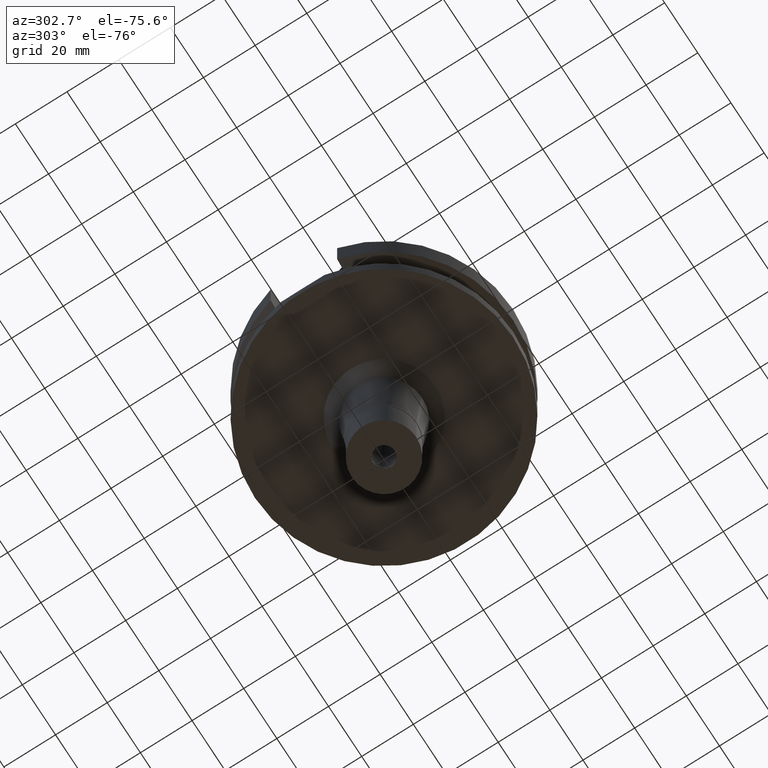
[diagram: clean part render]
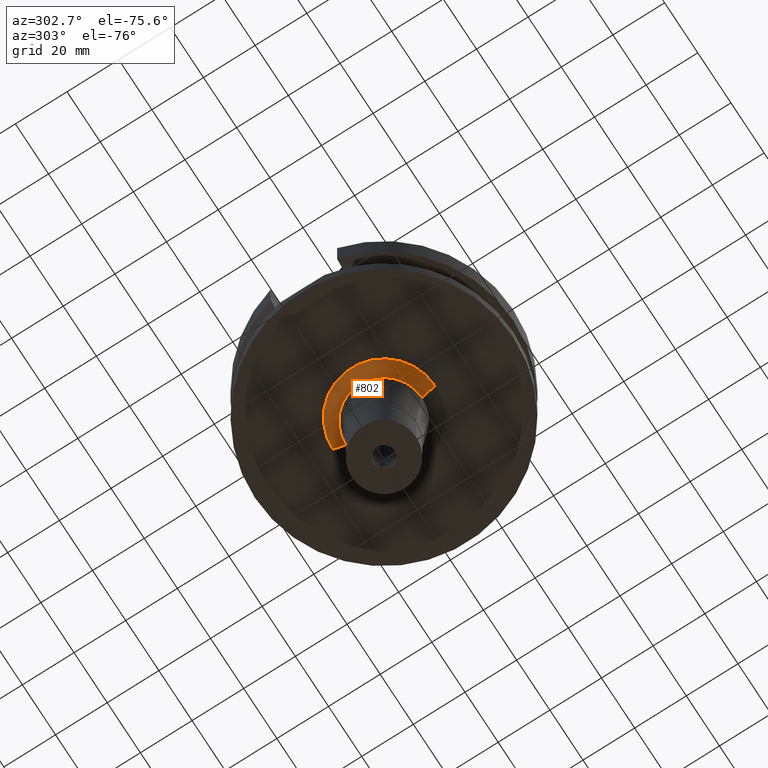
[diagram: same view with one face highlighted and labeled with its STEP entity id]
A machine part, auxiliary view. The second image highlights one B-rep face of the part: STEP entity #802.
In plain terms, the highlighted conical surface has half-angle 45 deg.
Its self-contained STEP definition (entity closure, byte-faithful):
#7 = AXIS2_PLACEMENT_3D ( 'NONE', #1967, #2945, #1445 ) ;
#77 = ORIENTED_EDGE ( 'NONE', *, *, #1265, .F. ) ;
#119 = VECTOR ( 'NONE', #710, 1000.000000000000000 ) ;
#139 = DIRECTION ( 'NONE',  ( 0.0000000000000000000, -1.000000000000000000, 0.0000000000000000000 ) ) ;
#248 = EDGE_CURVE ( 'NONE', #2726, #2011, #850, .T. ) ;
#298 = ORIENTED_EDGE ( 'NONE', *, *, #1373, .F. ) ;
#332 = AXIS2_PLACEMENT_3D ( 'NONE', #2656, #457, #139 ) ;
#352 = CARTESIAN_POINT ( 'NONE',  ( 0.0000000000000000000, -14.74845865262000011, -43.00000000000000000 ) ) ;
#454 = FACE_OUTER_BOUND ( 'NONE', #2359, .T. ) ;
#457 = DIRECTION ( 'NONE',  ( 0.0000000000000000000, 0.0000000000000000000, -1.000000000000000000 ) ) ;
#710 = DIRECTION ( 'NONE',  ( 0.0000000000000000000, 0.7071067811865969777, -0.7071067811864980568 ) ) ;
#802 = ADVANCED_FACE ( 'NONE', ( #454 ), #2592, .T. ) ;
#850 = CIRCLE ( 'NONE', #332, 19.74845865262000189 ) ;
#898 = VECTOR ( 'NONE', #1754, 1000.000000000000000 ) ;
#1022 = LINE ( 'NONE', #1996, #898 ) ;
#1218 = LINE ( 'NONE', #2179, #119 ) ;
#1265 = EDGE_CURVE ( 'NONE', #2726, #1529, #1218, .T. ) ;
#1274 = CARTESIAN_POINT ( 'NONE',  ( 0.0000000000000000000, 14.74845865262000011, -43.00000000000000000 ) ) ;
#1276 = CARTESIAN_POINT ( 'NONE',  ( 0.0000000000000000000, 19.74845865262000189, -38.00000000000000000 ) ) ;
#1373 = EDGE_CURVE ( 'NONE', #1529, #1822, #2122, .T. ) ;
#1445 = DIRECTION ( 'NONE',  ( 0.0000000000000000000, -1.000000000000000000, 0.0000000000000000000 ) ) ;
#1529 = VERTEX_POINT ( 'NONE', #352 ) ;
#1754 = DIRECTION ( 'NONE',  ( 0.0000000000000000000, -0.7071067811865969777, -0.7071067811864980568 ) ) ;
#1822 = VERTEX_POINT ( 'NONE', #1274 ) ;
#1857 = AXIS2_PLACEMENT_3D ( 'NONE', #1952, #1904, #2214 ) ;
#1904 = DIRECTION ( 'NONE',  ( 0.0000000000000000000, 0.0000000000000000000, 1.000000000000000000 ) ) ;
#1952 = CARTESIAN_POINT ( 'NONE',  ( 0.0000000000000000000, 0.0000000000000000000, -40.50000000000000000 ) ) ;
#1967 = CARTESIAN_POINT ( 'NONE',  ( 0.0000000000000000000, 0.0000000000000000000, -43.00000000000000000 ) ) ;
#1996 = CARTESIAN_POINT ( 'NONE',  ( 0.0000000000000000000, 19.74845865262000189, -38.00000000000000000 ) ) ;
#2011 = VERTEX_POINT ( 'NONE', #1276 ) ;
#2122 = CIRCLE ( 'NONE', #7, 14.74845865262000011 ) ;
#2145 = CARTESIAN_POINT ( 'NONE',  ( 0.0000000000000000000, -19.74845865262000189, -38.00000000000000000 ) ) ;
#2164 = EDGE_CURVE ( 'NONE', #2011, #1822, #1022, .T. ) ;
#2179 = CARTESIAN_POINT ( 'NONE',  ( 0.0000000000000000000, -19.74845865262000189, -38.00000000000000000 ) ) ;
#2214 = DIRECTION ( 'NONE',  ( 0.0000000000000000000, 1.000000000000000000, 0.0000000000000000000 ) ) ;
#2359 = EDGE_LOOP ( 'NONE', ( #298, #77, #3182, #2937 ) ) ;
#2592 = CONICAL_SURFACE ( 'NONE', #1857, 17.24845865262000189, 0.7853981633972997312 ) ;
#2656 = CARTESIAN_POINT ( 'NONE',  ( 0.0000000000000000000, 0.0000000000000000000, -38.00000000000000000 ) ) ;
#2726 = VERTEX_POINT ( 'NONE', #2145 ) ;
#2937 = ORIENTED_EDGE ( 'NONE', *, *, #2164, .T. ) ;
#2945 = DIRECTION ( 'NONE',  ( 0.0000000000000000000, 0.0000000000000000000, -1.000000000000000000 ) ) ;
#3182 = ORIENTED_EDGE ( 'NONE', *, *, #248, .T. ) ;